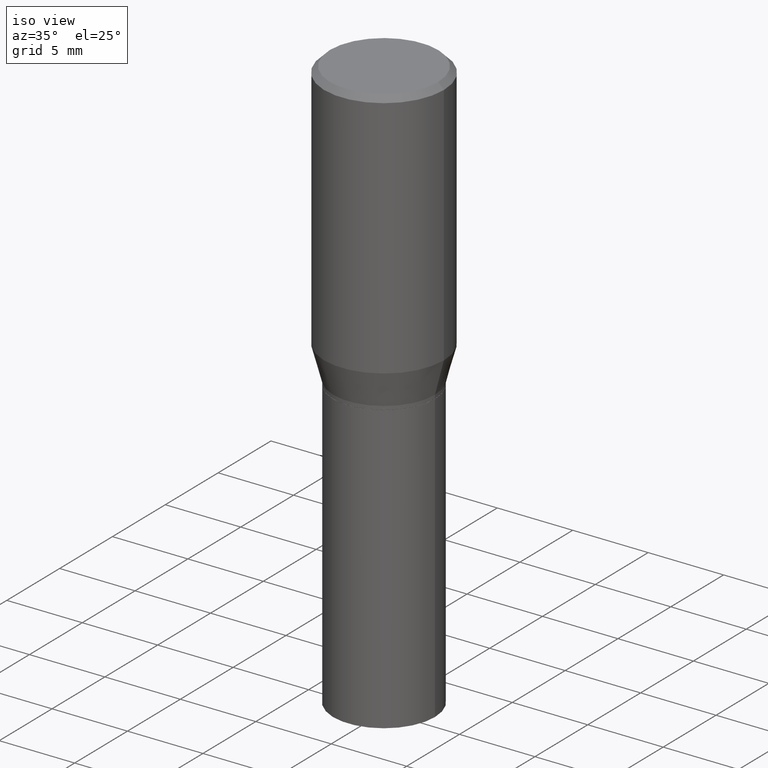
[diagram: clean part render]
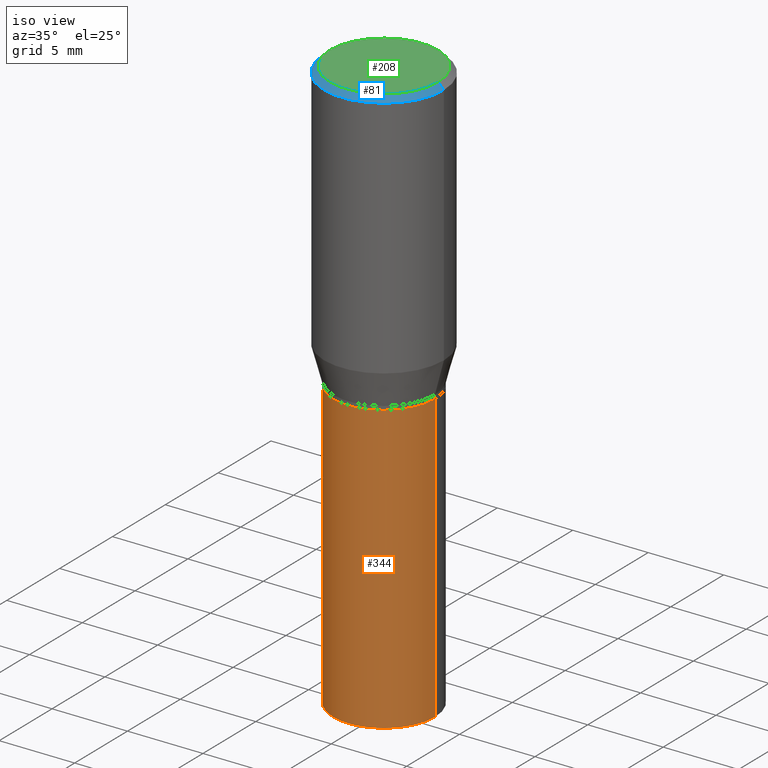
[diagram: same view with three faces highlighted in distinct colors, each labeled with its STEP entity id]
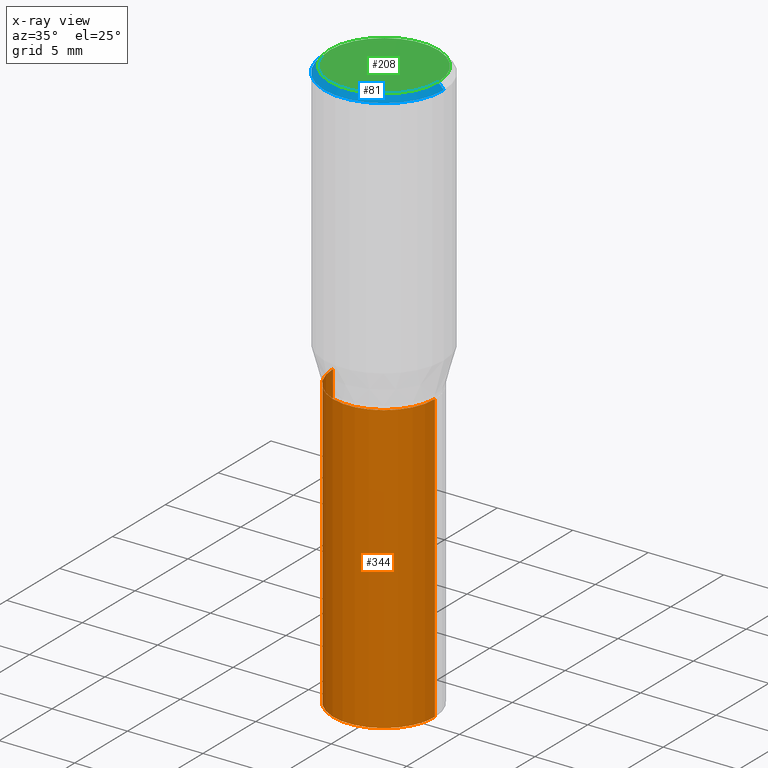
[diagram: x-ray of the same camera — body ghosted, the three highlighted faces saturated]
A machine part, iso view with three faces highlighted in distinct colors.
The next image is the same camera in x-ray (body ghosted, the three faces saturated) — at least one of them is partly hidden behind the body in this view.
Their STEP definitions:

[orange] entity #344 — the highlighted cylindrical surface (partial cylindrical patch) has radius 3.3731 mm, axis along (-0, 0, 1).
#8 = LINE ( 'NONE', #187, #110 ) ;
#13 = EDGE_CURVE ( 'NONE', #385, #230, #47, .T. ) ;
#32 = CARTESIAN_POINT ( 'NONE',  ( 0.000000000000000000, 0.000000000000000000, 0.000000000000000000 ) ) ;
#38 = FACE_OUTER_BOUND ( 'NONE', #188, .T. ) ;
#47 = CIRCLE ( 'NONE', #160, 0.1328000000000000014 ) ;
#64 = DIRECTION ( 'NONE',  ( -2.445468806185136877E-29, 3.491481338843145188E-15, 1.000000000000000000 ) ) ;
#87 = CIRCLE ( 'NONE', #347, 0.1328000000000000014 ) ;
#110 = VECTOR ( 'NONE', #111, 39.37007874015748143 ) ;
#111 = DIRECTION ( 'NONE',  ( -2.445468806185136877E-29, 3.491481338843145188E-15, 1.000000000000000000 ) ) ;
#126 = VERTEX_POINT ( 'NONE', #181 ) ;
#160 = AXIS2_PLACEMENT_3D ( 'NONE', #359, #273, #207 ) ;
#165 = DIRECTION ( 'NONE',  ( 1.000000000000000000, -6.982962677686266711E-15, 4.876176775795935232E-29 ) ) ;
#176 = EDGE_CURVE ( 'NONE', #385, #339, #8, .T. ) ;
#180 = EDGE_CURVE ( 'NONE', #339, #126, #87, .T. ) ;
#181 = CARTESIAN_POINT ( 'NONE',  ( 0.1328000000000000014, -3.545948447729095705E-15, -0.7500000000000001110 ) ) ;
#187 = CARTESIAN_POINT ( 'NONE',  ( -0.1328000000000000014, 9.436007530894130566E-16, -6.532345799858513932E-30 ) ) ;
#188 = EDGE_LOOP ( 'NONE', ( #332, #422, #191, #417 ) ) ;
#191 = ORIENTED_EDGE ( 'NONE', *, *, #454, .T. ) ;
#200 = CYLINDRICAL_SURFACE ( 'NONE', #444, 0.1328000000000000014 ) ;
#207 = DIRECTION ( 'NONE',  ( 1.000000000000000000, -6.982962677686263555E-15, 0.000000000000000000 ) ) ;
#230 = VERTEX_POINT ( 'NONE', #331 ) ;
#245 = CARTESIAN_POINT ( 'NONE',  ( -0.1328000000000000014, -2.984315753109125576E-15, -0.7500000000000001110 ) ) ;
#250 = DIRECTION ( 'NONE',  ( -2.445468806185136597E-29, 3.491481338843145583E-15, 1.000000000000000000 ) ) ;
#273 = DIRECTION ( 'NONE',  ( -2.445468806185136597E-29, 3.491481338843145583E-15, 1.000000000000000000 ) ) ;
#287 = VECTOR ( 'NONE', #64, 39.37007874015748143 ) ;
#316 = CARTESIAN_POINT ( 'NONE',  ( -0.1328000000000000014, -2.984315753109125576E-15, -1.500000000000000222 ) ) ;
#319 = LINE ( 'NONE', #429, #287 ) ;
#325 = DIRECTION ( 'NONE',  ( 1.000000000000000000, -6.982962677686268288E-15, 0.000000000000000000 ) ) ;
#331 = CARTESIAN_POINT ( 'NONE',  ( 0.1328000000000000014, -6.164559451861454793E-15, -1.500000000000000222 ) ) ;
#332 = ORIENTED_EDGE ( 'NONE', *, *, #176, .F. ) ;
#339 = VERTEX_POINT ( 'NONE', #245 ) ;
#344 = ADVANCED_FACE ( 'NONE', ( #38 ), #200, .T. ) ;
#347 = AXIS2_PLACEMENT_3D ( 'NONE', #409, #250, #325 ) ;
#359 = CARTESIAN_POINT ( 'NONE',  ( 3.668203209277704895E-29, -5.237222008264718177E-15, -1.500000000000000222 ) ) ;
#385 = VERTEX_POINT ( 'NONE', #316 ) ;
#409 = CARTESIAN_POINT ( 'NONE',  ( 1.834101604638852448E-29, -2.618611004132359088E-15, -0.7500000000000001110 ) ) ;
#417 = ORIENTED_EDGE ( 'NONE', *, *, #180, .F. ) ;
#420 = DIRECTION ( 'NONE',  ( -2.445468806185136597E-29, 3.491481338843145583E-15, 1.000000000000000000 ) ) ;
#422 = ORIENTED_EDGE ( 'NONE', *, *, #13, .T. ) ;
#429 = CARTESIAN_POINT ( 'NONE',  ( 0.1328000000000000014, -9.273374435967362223E-16, 6.475562758257002307E-30 ) ) ;
#444 = AXIS2_PLACEMENT_3D ( 'NONE', #32, #420, #165 ) ;
#454 = EDGE_CURVE ( 'NONE', #230, #126, #319, .T. ) ;

[blue] entity #81 — the highlighted conical surface has half-angle 45 deg.
#1 = DIRECTION ( 'NONE',  ( 1.000000000000000000, -6.982962677686265922E-15, 4.874209154772796007E-29 ) ) ;
#4 = LINE ( 'NONE', #144, #257 ) ;
#33 = AXIS2_PLACEMENT_3D ( 'NONE', #37, #98, #100 ) ;
#37 = CARTESIAN_POINT ( 'NONE',  ( 3.668203209277705088E-31, -5.237222008264718399E-17, -0.01499999999999999944 ) ) ;
#61 = AXIS2_PLACEMENT_3D ( 'NONE', #243, #73, #1 ) ;
#73 = DIRECTION ( 'NONE',  ( -2.445468806185136597E-29, 3.491481338843145583E-15, 1.000000000000000000 ) ) ;
#79 = CARTESIAN_POINT ( 'NONE',  ( -0.1562500000000000000, 1.038715698305832094E-15, -0.01499999999999999944 ) ) ;
#81 = ADVANCED_FACE ( 'NONE', ( #132 ), #373, .T. ) ;
#88 = EDGE_CURVE ( 'NONE', #232, #234, #286, .T. ) ;
#91 = VERTEX_POINT ( 'NONE', #203 ) ;
#94 = EDGE_LOOP ( 'NONE', ( #121, #244, #413, #164 ) ) ;
#98 = DIRECTION ( 'NONE',  ( -2.445468806185136597E-29, 3.491481338843145583E-15, 1.000000000000000000 ) ) ;
#100 = DIRECTION ( 'NONE',  ( 1.000000000000000000, -6.982962677686266711E-15, 0.000000000000000000 ) ) ;
#102 = DIRECTION ( 'NONE',  ( -1.000000000000000000, 6.982962677686266711E-15, 0.000000000000000000 ) ) ;
#108 = DIRECTION ( 'NONE',  ( 0.7071067811865483499, -7.319954787623257623E-15, -0.7071067811865466846 ) ) ;
#113 = DIRECTION ( 'NONE',  ( -0.7071067811865483499, 2.468850131082265738E-15, -0.7071067811865466846 ) ) ;
#121 = ORIENTED_EDGE ( 'NONE', *, *, #142, .F. ) ;
#123 = EDGE_CURVE ( 'NONE', #381, #91, #225, .T. ) ;
#132 = FACE_OUTER_BOUND ( 'NONE', #94, .T. ) ;
#142 = EDGE_CURVE ( 'NONE', #91, #234, #4, .T. ) ;
#144 = CARTESIAN_POINT ( 'NONE',  ( 0.1562500000000000000, -1.124325032234449083E-15, -0.01499999999999999944 ) ) ;
#164 = ORIENTED_EDGE ( 'NONE', *, *, #88, .T. ) ;
#167 = VECTOR ( 'NONE', #113, 39.37007874015748143 ) ;
#203 = CARTESIAN_POINT ( 'NONE',  ( 0.1412500000000000144, -1.046685187209839144E-15, -4.362760153141894826E-17 ) ) ;
#218 = CARTESIAN_POINT ( 'NONE',  ( -0.1562500000000000000, -5.502990786655347834E-17, -0.01499999999999999944 ) ) ;
#225 = CIRCLE ( 'NONE', #61, 0.1412500000000000144 ) ;
#231 = EDGE_CURVE ( 'NONE', #381, #232, #440, .T. ) ;
#232 = VERTEX_POINT ( 'NONE', #218 ) ;
#234 = VERTEX_POINT ( 'NONE', #252 ) ;
#237 = DIRECTION ( 'NONE',  ( 2.445468806185136597E-29, -3.491481338843145583E-15, -1.000000000000000000 ) ) ;
#243 = CARTESIAN_POINT ( 'NONE',  ( 1.066899386337773103E-45, -1.523249566054587316E-31, -4.362760153142606033E-17 ) ) ;
#244 = ORIENTED_EDGE ( 'NONE', *, *, #123, .F. ) ;
#252 = CARTESIAN_POINT ( 'NONE',  ( 0.1562500000000000000, -1.143460138471126253E-15, -0.01499999999999999944 ) ) ;
#257 = VECTOR ( 'NONE', #108, 39.37007874015748143 ) ;
#268 = AXIS2_PLACEMENT_3D ( 'NONE', #432, #237, #102 ) ;
#286 = CIRCLE ( 'NONE', #33, 0.1562500000000000000 ) ;
#322 = CARTESIAN_POINT ( 'NONE',  ( -0.1412500000000000144, 1.012529588264508555E-15, -4.362760153143304915E-17 ) ) ;
#373 = CONICAL_SURFACE ( 'NONE', #268, 0.1562500000000000000, 0.7853981633974495002 ) ;
#381 = VERTEX_POINT ( 'NONE', #322 ) ;
#413 = ORIENTED_EDGE ( 'NONE', *, *, #231, .T. ) ;
#432 = CARTESIAN_POINT ( 'NONE',  ( 3.668203209277705088E-31, -5.237222008264718399E-17, -0.01499999999999999944 ) ) ;
#440 = LINE ( 'NONE', #79, #167 ) ;

[green] entity #208 — the highlighted planar face has unit normal (0, -0, -1).
#1 = DIRECTION ( 'NONE',  ( 1.000000000000000000, -6.982962677686265922E-15, 4.874209154772796007E-29 ) ) ;
#24 = AXIS2_PLACEMENT_3D ( 'NONE', #143, #388, #175 ) ;
#61 = AXIS2_PLACEMENT_3D ( 'NONE', #243, #73, #1 ) ;
#73 = DIRECTION ( 'NONE',  ( -2.445468806185136597E-29, 3.491481338843145583E-15, 1.000000000000000000 ) ) ;
#91 = VERTEX_POINT ( 'NONE', #203 ) ;
#116 = CARTESIAN_POINT ( 'NONE',  ( 9.863434782231852123E-16, 0.1412500000000000144, -5.149855398773074051E-16 ) ) ;
#123 = EDGE_CURVE ( 'NONE', #381, #91, #225, .T. ) ;
#143 = CARTESIAN_POINT ( 'NONE',  ( 1.066899386337773103E-45, -1.523249566054587316E-31, -4.362760153142606033E-17 ) ) ;
#157 = CIRCLE ( 'NONE', #24, 0.1412500000000000144 ) ;
#158 = ORIENTED_EDGE ( 'NONE', *, *, #123, .T. ) ;
#175 = DIRECTION ( 'NONE',  ( 1.000000000000000000, -6.982962677686265922E-15, 4.874209154772796007E-29 ) ) ;
#185 = FACE_OUTER_BOUND ( 'NONE', #266, .T. ) ;
#197 = ORIENTED_EDGE ( 'NONE', *, *, #397, .T. ) ;
#203 = CARTESIAN_POINT ( 'NONE',  ( 0.1412500000000000144, -1.046685187209839144E-15, -4.362760153141894826E-17 ) ) ;
#208 = ADVANCED_FACE ( 'NONE', ( #185 ), #403, .F. ) ;
#222 = DIRECTION ( 'NONE',  ( -1.000000000000000000, 6.982962677686265922E-15, -4.876176775795935793E-29 ) ) ;
#225 = CIRCLE ( 'NONE', #61, 0.1412500000000000144 ) ;
#243 = CARTESIAN_POINT ( 'NONE',  ( 1.066899386337773103E-45, -1.523249566054587316E-31, -4.362760153142606033E-17 ) ) ;
#266 = EDGE_LOOP ( 'NONE', ( #158, #197 ) ) ;
#288 = DIRECTION ( 'NONE',  ( 2.438088387897960049E-29, -3.491481338843145188E-15, -1.000000000000000000 ) ) ;
#322 = CARTESIAN_POINT ( 'NONE',  ( -0.1412500000000000144, 1.012529588264508555E-15, -4.362760153143304915E-17 ) ) ;
#381 = VERTEX_POINT ( 'NONE', #322 ) ;
#388 = DIRECTION ( 'NONE',  ( -2.445468806185136597E-29, 3.491481338843145583E-15, 1.000000000000000000 ) ) ;
#397 = EDGE_CURVE ( 'NONE', #91, #381, #157, .T. ) ;
#403 = PLANE ( 'NONE',  #427 ) ;
#427 = AXIS2_PLACEMENT_3D ( 'NONE', #116, #288, #222 ) ;